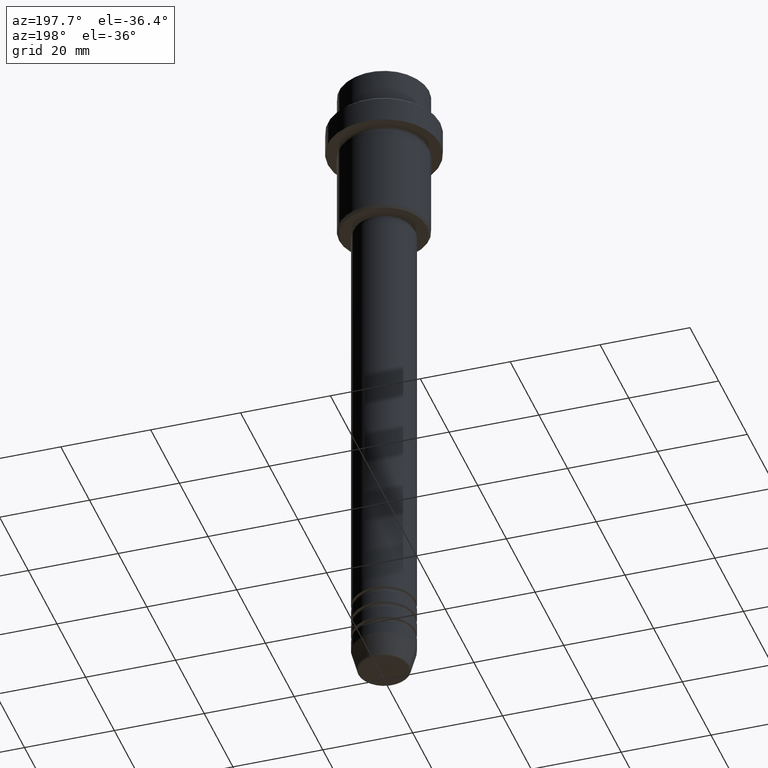
[diagram: clean part render]
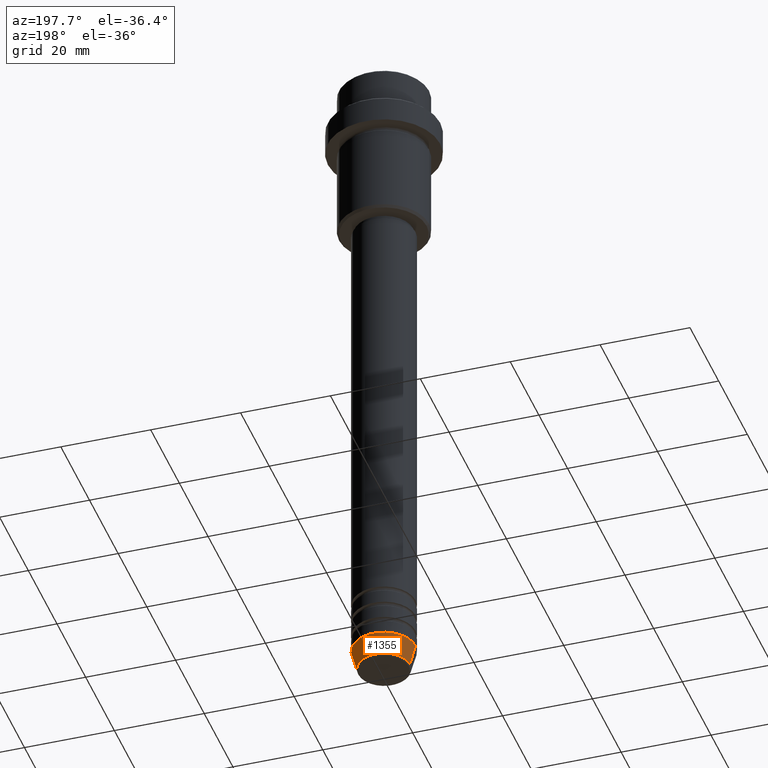
[diagram: same view with one face highlighted and labeled with its STEP entity id]
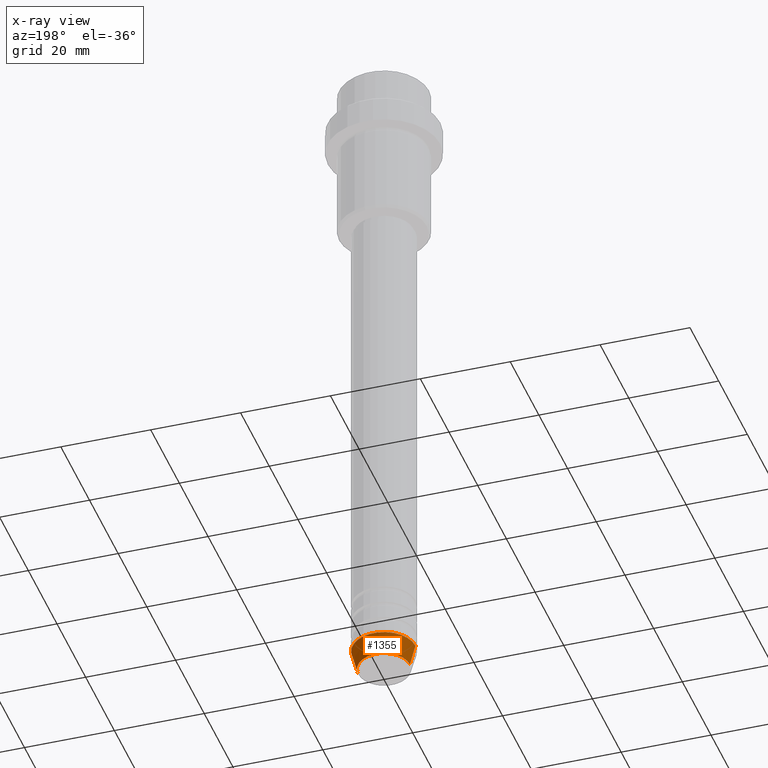
[diagram: x-ray of the same camera — body ghosted, the highlighted face saturated]
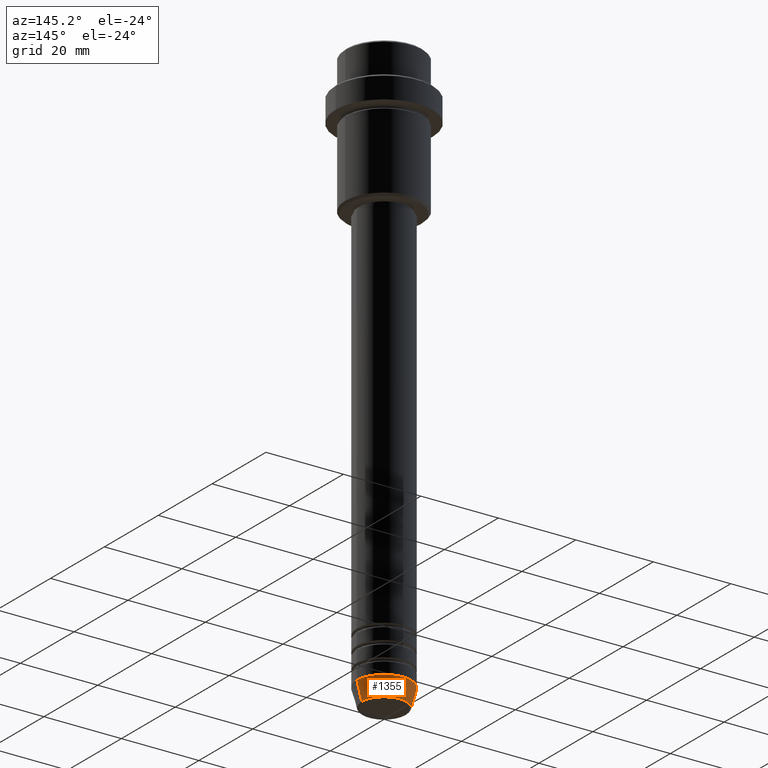
[diagram: same view with one face highlighted and labeled with its STEP entity id]
A machine part, auxiliary view. The second image highlights one B-rep face of the part: STEP entity #1355.
The next image is the same camera in x-ray: the body ghosted, the highlighted face saturated — about 0% of this face is hidden behind the body in this view.
A second angle (auxiliary view) of the same face is appended — the face is thin or edge-on in the first view.
In plain terms, the highlighted conical surface has half-angle 15 deg.
Its self-contained STEP definition (entity closure, byte-faithful):
#13 = DIRECTION ( 'NONE',  ( -0.000000000000000000, -0.000000000000000000, 1.000000000000000000 ) ) ;
#74 = DIRECTION ( 'NONE',  ( -0.2588190451025227379, 3.169619151431788361E-17, 0.9659258262890676461 ) ) ;
#79 = AXIS2_PLACEMENT_3D ( 'NONE', #289, #976, #88 ) ;
#88 = DIRECTION ( 'NONE',  ( 1.000000000000000000, 0.000000000000000000, 0.000000000000000000 ) ) ;
#104 = EDGE_CURVE ( 'NONE', #1254, #812, #253, .T. ) ;
#136 = ORIENTED_EDGE ( 'NONE', *, *, #672, .F. ) ;
#159 = VERTEX_POINT ( 'NONE', #477 ) ;
#206 = CARTESIAN_POINT ( 'NONE',  ( -7.000000000000000000, 8.572527594031473190E-16, -146.0000000000000000 ) ) ;
#218 = DIRECTION ( 'NONE',  ( 1.000000000000000000, 0.000000000000000000, 0.000000000000000000 ) ) ;
#248 = ORIENTED_EDGE ( 'NONE', *, *, #874, .T. ) ;
#253 = LINE ( 'NONE', #896, #556 ) ;
#274 = CARTESIAN_POINT ( 'NONE',  ( -5.759553456999437770, 7.812973149831953745E-16, -150.6294095225512137 ) ) ;
#287 = VERTEX_POINT ( 'NONE', #274 ) ;
#289 = CARTESIAN_POINT ( 'NONE',  ( 0.000000000000000000, 0.000000000000000000, -146.0000000000000000 ) ) ;
#359 = FACE_OUTER_BOUND ( 'NONE', #1037, .T. ) ;
#441 = CARTESIAN_POINT ( 'NONE',  ( 5.759553456999437770, 0.000000000000000000, -150.6294095225512137 ) ) ;
#470 = VECTOR ( 'NONE', #74, 1000.000000000000114 ) ;
#477 = CARTESIAN_POINT ( 'NONE',  ( -7.000000000000000000, 8.572527594031473190E-16, -146.0000000000000000 ) ) ;
#517 = ORIENTED_EDGE ( 'NONE', *, *, #104, .F. ) ;
#556 = VECTOR ( 'NONE', #571, 1000.000000000000114 ) ;
#571 = DIRECTION ( 'NONE',  ( 0.2588190451025227379, 0.000000000000000000, 0.9659258262890676461 ) ) ;
#585 = AXIS2_PLACEMENT_3D ( 'NONE', #1238, #677, #1121 ) ;
#665 = CARTESIAN_POINT ( 'NONE',  ( 0.000000000000000000, 0.000000000000000000, -150.6294095225512137 ) ) ;
#672 = EDGE_CURVE ( 'NONE', #812, #159, #1135, .T. ) ;
#677 = DIRECTION ( 'NONE',  ( -0.000000000000000000, -0.000000000000000000, 1.000000000000000000 ) ) ;
#792 = AXIS2_PLACEMENT_3D ( 'NONE', #665, #13, #218 ) ;
#812 = VERTEX_POINT ( 'NONE', #1334 ) ;
#818 = CONICAL_SURFACE ( 'NONE', #585, 7.000000000000000000, 0.2617993877991514617 ) ;
#874 = EDGE_CURVE ( 'NONE', #1254, #287, #928, .T. ) ;
#896 = CARTESIAN_POINT ( 'NONE',  ( 7.000000000000000000, 0.000000000000000000, -146.0000000000000000 ) ) ;
#928 = CIRCLE ( 'NONE', #792, 5.759553456999437770 ) ;
#976 = DIRECTION ( 'NONE',  ( -0.000000000000000000, -0.000000000000000000, 1.000000000000000000 ) ) ;
#1037 = EDGE_LOOP ( 'NONE', ( #248, #1322, #136, #517 ) ) ;
#1121 = DIRECTION ( 'NONE',  ( 1.000000000000000000, 0.000000000000000000, 0.000000000000000000 ) ) ;
#1135 = CIRCLE ( 'NONE', #79, 7.000000000000000000 ) ;
#1171 = EDGE_CURVE ( 'NONE', #287, #159, #1379, .T. ) ;
#1238 = CARTESIAN_POINT ( 'NONE',  ( 0.000000000000000000, 0.000000000000000000, -146.0000000000000000 ) ) ;
#1254 = VERTEX_POINT ( 'NONE', #441 ) ;
#1322 = ORIENTED_EDGE ( 'NONE', *, *, #1171, .T. ) ;
#1334 = CARTESIAN_POINT ( 'NONE',  ( 7.000000000000000000, 0.000000000000000000, -146.0000000000000000 ) ) ;
#1355 = ADVANCED_FACE ( 'NONE', ( #359 ), #818, .T. ) ;
#1379 = LINE ( 'NONE', #206, #470 ) ;